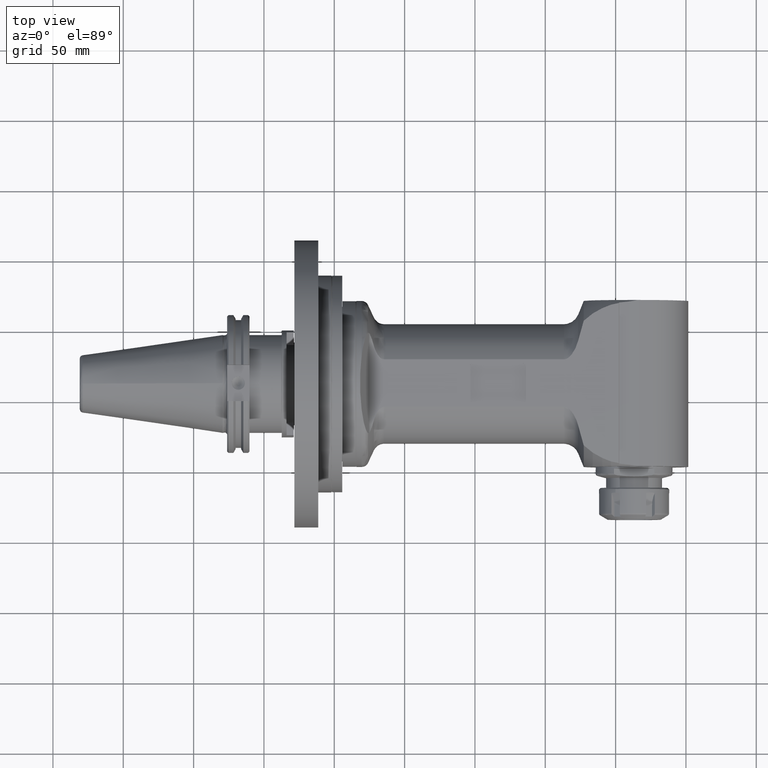
[diagram: clean part render]
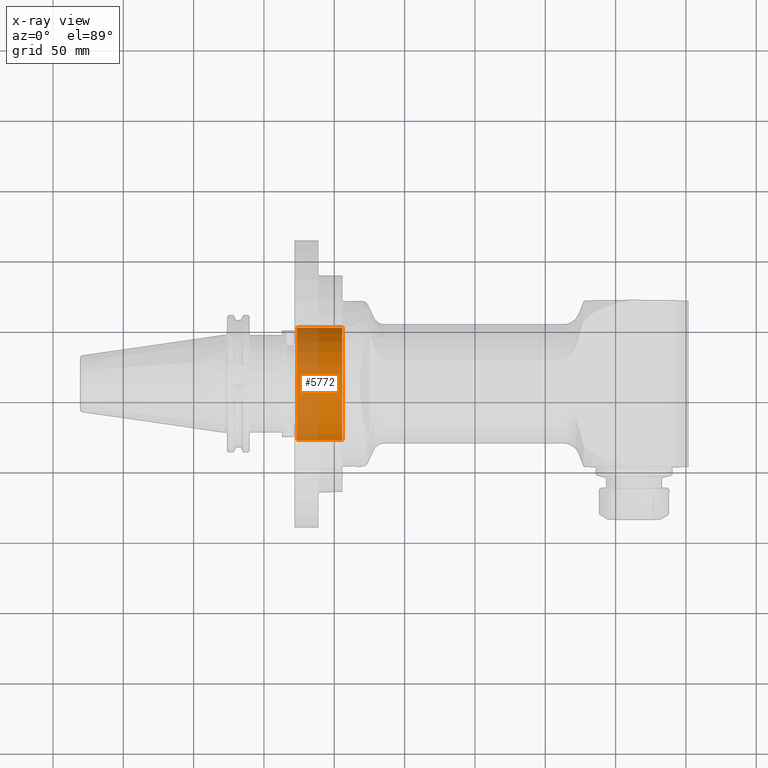
[diagram: x-ray — body ghosted, one internal face saturated and labeled with its STEP entity id]
A machine part, top view, then the same camera in x-ray: the body is ghosted and one INTERNAL B-rep face — a face not visible from any outside direction — is saturated and labeled: STEP entity #5772.
In plain terms, the highlighted cylindrical surface (bore or boss wall) has radius 40 mm, axis along (-1, 0, 0).
Its self-contained STEP definition (entity closure, byte-faithful):
#72=CYLINDRICAL_SURFACE('',#6255,40.);
#505=FACE_OUTER_BOUND('',#879,.T.);
#879=EDGE_LOOP('',(#4000,#4001,#4002,#4003,#4004));
#1352=CIRCLE('',#6254,40.);
#1353=CIRCLE('',#6256,40.);
#1354=CIRCLE('',#6257,40.);
#1702=LINE('',#9340,#2047);
#2047=VECTOR('',#7110,40.);
#2457=VERTEX_POINT('',#9333);
#2458=VERTEX_POINT('',#9336);
#2459=VERTEX_POINT('',#9337);
#3062=EDGE_CURVE('',#2457,#2457,#1352,.T.);
#3063=EDGE_CURVE('',#2458,#2459,#1353,.T.);
#3064=EDGE_CURVE('',#2459,#2458,#1354,.T.);
#3065=EDGE_CURVE('',#2459,#2457,#1702,.T.);
#4000=ORIENTED_EDGE('',*,*,#3063,.F.);
#4001=ORIENTED_EDGE('',*,*,#3064,.F.);
#4002=ORIENTED_EDGE('',*,*,#3065,.T.);
#4003=ORIENTED_EDGE('',*,*,#3062,.F.);
#4004=ORIENTED_EDGE('',*,*,#3065,.F.);
#5772=ADVANCED_FACE('',(#505),#72,.T.);
#6254=AXIS2_PLACEMENT_3D('',#9334,#7102,#7103);
#6255=AXIS2_PLACEMENT_3D('',#9335,#7104,#7105);
#6256=AXIS2_PLACEMENT_3D('',#9338,#7106,#7107);
#6257=AXIS2_PLACEMENT_3D('',#9339,#7108,#7109);
#7102=DIRECTION('center_axis',(1.,0.,0.));
#7103=DIRECTION('ref_axis',(0.,1.,0.));
#7104=DIRECTION('center_axis',(-1.,0.,0.));
#7105=DIRECTION('ref_axis',(0.,1.,0.));
#7106=DIRECTION('center_axis',(-1.,0.,0.));
#7107=DIRECTION('ref_axis',(0.,-1.,0.));
#7108=DIRECTION('center_axis',(-1.,0.,0.));
#7109=DIRECTION('ref_axis',(0.,-1.,0.));
#7110=DIRECTION('',(1.,0.,0.));
#9333=CARTESIAN_POINT('',(-207.5,-40.,4.89858719658941E-15));
#9334=CARTESIAN_POINT('Origin',(-207.5,0.,0.));
#9335=CARTESIAN_POINT('Origin',(-224.5,0.,0.));
#9336=CARTESIAN_POINT('',(-239.7679491924,40.,0.));
#9337=CARTESIAN_POINT('',(-239.7679491924,-40.,4.89858719658941E-15));
#9338=CARTESIAN_POINT('Origin',(-239.7679491924,0.,0.));
#9339=CARTESIAN_POINT('Origin',(-239.7679491924,0.,0.));
#9340=CARTESIAN_POINT('',(-224.5,-40.,4.89858719658941E-15));